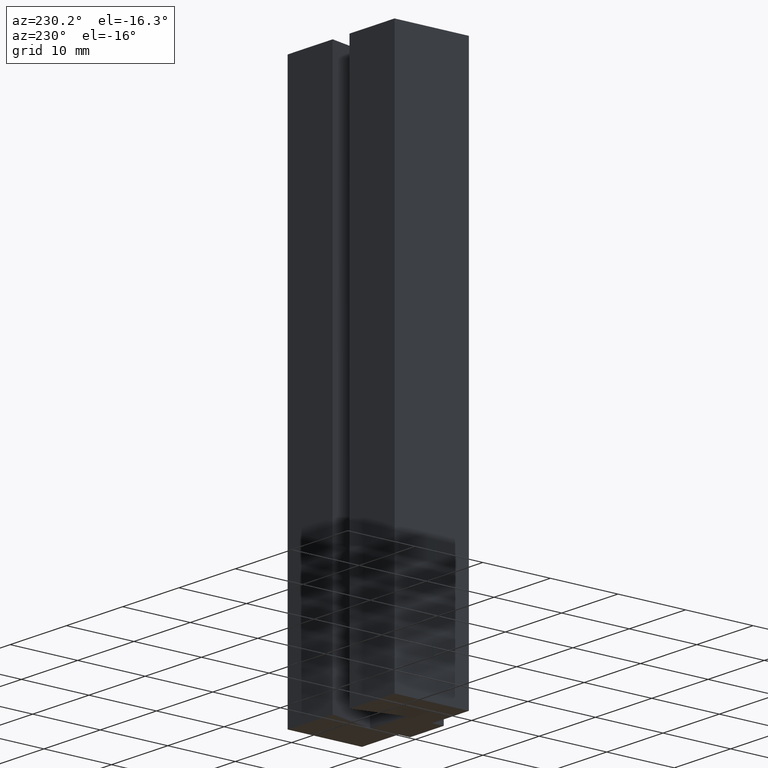
[diagram: clean part render]
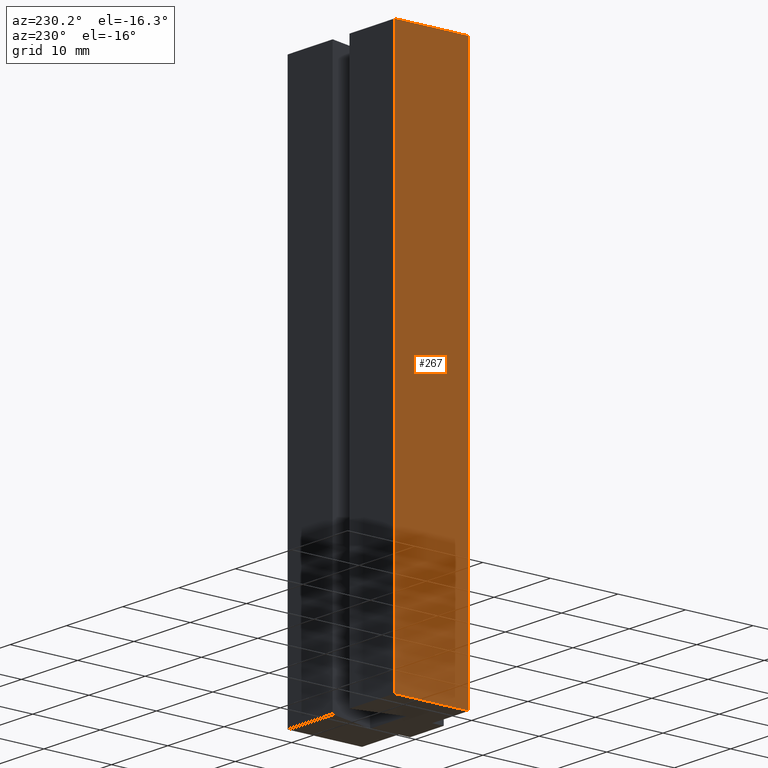
[diagram: same view with one face highlighted and labeled with its STEP entity id]
A machine part, auxiliary view. The second image highlights one B-rep face of the part: STEP entity #267.
In plain terms, the highlighted planar face has unit normal (-1, 0, 0).
Its self-contained STEP definition (entity closure, byte-faithful):
#21=FACE_OUTER_BOUND('',#35,.T.);
#35=EDGE_LOOP('',(#204,#205,#206,#207));
#50=LINE('',#395,#86);
#64=LINE('',#422,#100);
#65=LINE('',#425,#101);
#66=LINE('',#426,#102);
#86=VECTOR('',#323,10.);
#100=VECTOR('',#345,10.);
#101=VECTOR('',#348,10.);
#102=VECTOR('',#349,10.);
#122=VERTEX_POINT('',#392);
#123=VERTEX_POINT('',#394);
#132=VERTEX_POINT('',#420);
#133=VERTEX_POINT('',#424);
#146=EDGE_CURVE('',#123,#122,#50,.T.);
#160=EDGE_CURVE('',#132,#122,#64,.T.);
#161=EDGE_CURVE('',#132,#133,#65,.T.);
#162=EDGE_CURVE('',#133,#123,#66,.T.);
#204=ORIENTED_EDGE('',*,*,#161,.T.);
#205=ORIENTED_EDGE('',*,*,#162,.T.);
#206=ORIENTED_EDGE('',*,*,#146,.T.);
#207=ORIENTED_EDGE('',*,*,#160,.F.);
#253=PLANE('',#304);
#267=ADVANCED_FACE('',(#21),#253,.T.);
#304=AXIS2_PLACEMENT_3D('',#423,#346,#347);
#323=DIRECTION('',(0.,-1.,0.));
#345=DIRECTION('',(0.,0.,-1.));
#346=DIRECTION('center_axis',(-1.,0.,0.));
#347=DIRECTION('ref_axis',(0.,0.,1.));
#348=DIRECTION('',(0.,1.,0.));
#349=DIRECTION('',(0.,0.,-1.));
#392=CARTESIAN_POINT('',(-9.50000000000001,0.,-40.));
#394=CARTESIAN_POINT('',(-9.50000000000001,11.,-40.));
#395=CARTESIAN_POINT('',(-9.50000000000001,0.,-40.));
#420=CARTESIAN_POINT('',(-9.50000000000001,0.,40.));
#422=CARTESIAN_POINT('',(-9.50000000000001,0.,0.));
#423=CARTESIAN_POINT('Origin',(-9.50000000000001,0.,0.));
#424=CARTESIAN_POINT('',(-9.50000000000001,11.,40.));
#425=CARTESIAN_POINT('',(-9.50000000000001,0.,40.));
#426=CARTESIAN_POINT('',(-9.50000000000001,11.,0.));